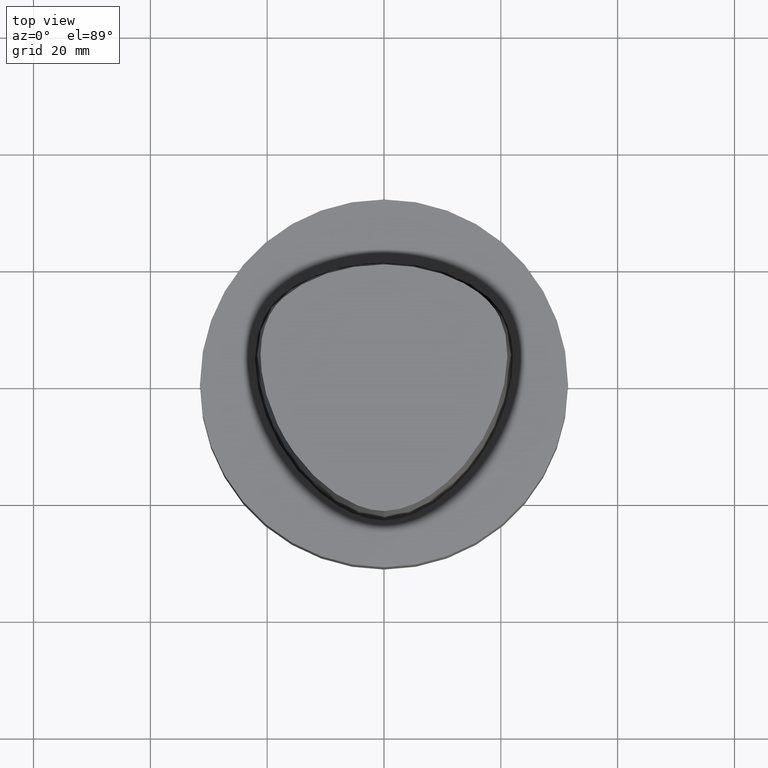
[diagram: clean part render]
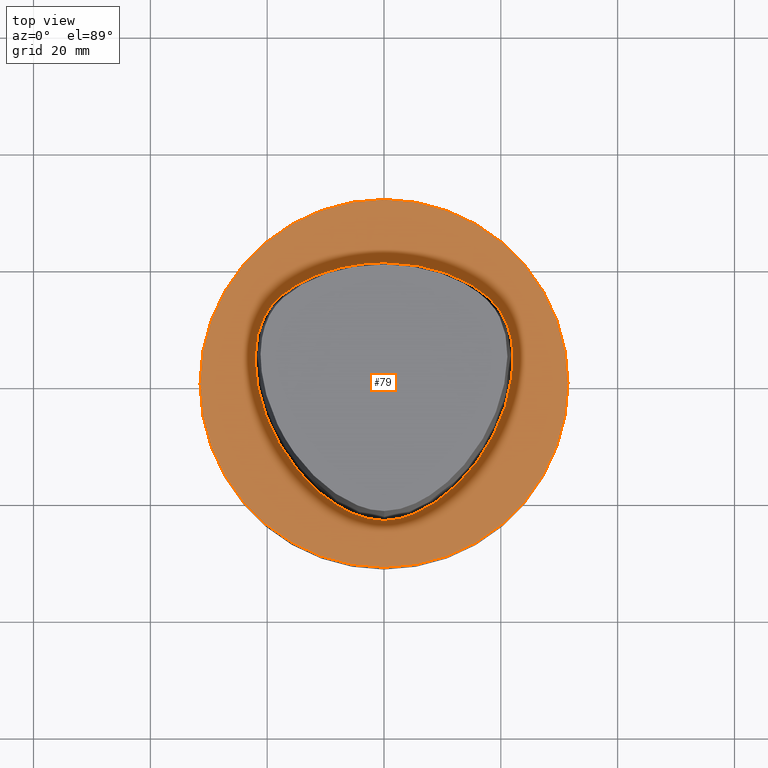
[diagram: same view with one face highlighted and labeled with its STEP entity id]
A machine part, top view. The second image highlights one B-rep face of the part: STEP entity #79.
In plain terms, the highlighted planar face has unit normal (-0, -0, 1).
Its self-contained STEP definition (entity closure, byte-faithful):
#79=ADVANCED_FACE('',(#95,#96),#97,.T.);
#95=FACE_BOUND('',#261,.T.);
#96=FACE_OUTER_BOUND('',#262,.T.);
#97=PLANE('',#263);
#261=EDGE_LOOP('',(#300,#301,#302));
#262=EDGE_LOOP('',(#303));
#263=AXIS2_PLACEMENT_3D('',#304,#305,#306);
#300=ORIENTED_EDGE('',*,*,#336,.T.);
#301=ORIENTED_EDGE('',*,*,#340,.T.);
#302=ORIENTED_EDGE('',*,*,#343,.T.);
#303=ORIENTED_EDGE('',*,*,#344,.F.);
#304=CARTESIAN_POINT('',(-1.94087516075568E-031,15.74625,1.9283594661074E-015));
#305=DIRECTION('',(-6.12323399573677E-017,-1.22464679914735E-016,1.0));
#306=DIRECTION('',(1.23259516440783E-032,-1.0,-1.22464679914735E-016));
#336=EDGE_CURVE('',#350,#351,#352,.T.);
#340=EDGE_CURVE('',#351,#358,#359,.T.);
#343=EDGE_CURVE('',#358,#350,#362,.T.);
#344=EDGE_CURVE('',#363,#363,#364,.T.);
#350=VERTEX_POINT('',#375);
#351=VERTEX_POINT('',#376);
#352=B_SPLINE_CURVE_WITH_KNOTS('',3,(#377,#378,#379,#380,#381,#382,#383,#384,#385,#386,#387,#388,#389,#390,#391,#392,#393),.UNSPECIFIED.,.F.,.F.,(4,1,1,1,1,1,1,1,1,1,1,1,1,1,4),(-13.2302678617486,-12.816821991069,-12.4033761203893,-11.9899302497097,-11.57648437903,-11.1630385083504,-10.9563155730106,-10.7495926376707,-10.3361467669911,-9.92270089631145,-9.09580915495216,-8.26891741359287,-7.44202567223358,-7.02857980155394,-6.6151339308743),.UNSPECIFIED.);
#358=VERTEX_POINT('',#416);
#359=B_SPLINE_CURVE_WITH_KNOTS('',3,(#417,#418,#419,#420,#421,#422,#423,#424,#425,#426,#427,#428,#429,#430,#431,#432,#433,#434),.UNSPECIFIED.,.F.,.F.,(4,1,1,1,1,1,1,1,1,2,1,1,1,1,4),(-6.6151339308743,-6.20168806019465,-5.78824218951501,-5.37479631883537,-4.96135044815572,-4.13445870679644,-3.30756696543715,-2.89412109475751,-2.48067522407786,-2.06722935339822,-1.65378348271857,-1.24033761203893,-0.826891741359287,-0.413445870679644,0.0),.UNSPECIFIED.);
#362=CIRCLE('',#453,0.949936168436318);
#363=VERTEX_POINT('',#454);
#364=CIRCLE('',#455,31.4925);
#375=CARTESIAN_POINT('',(0.044682985379347,20.6765087343109,1.61778115328528E-031));
#376=CARTESIAN_POINT('',(0.04359356758149,-23.4691235068931,7.78075697532443E-032));
#377=CARTESIAN_POINT('',(0.044682985379347,20.6765087343109,1.61778115328528E-031));
#378=CARTESIAN_POINT('',(1.42379272427753,20.6097915814392,8.62816615085482E-032));
#379=CARTESIAN_POINT('',(4.2230955003445,20.4837538303966,1.4791141972894E-031));
#380=CARTESIAN_POINT('',(8.47220762821777,19.6890432607088,9.86076131526265E-032));
#381=CARTESIAN_POINT('',(12.5141247708253,18.2434968480404,0.0));
#382=CARTESIAN_POINT('',(16.3038624872874,16.1734192182143,1.97215226305253E-031));
#383=CARTESIAN_POINT('',(19.1446913988473,13.7036723639434,-1.97215226305253E-031));
#384=CARTESIAN_POINT('',(20.7319894342149,11.1014620996188,0.0));
#385=CARTESIAN_POINT('',(21.7831756505763,8.28099229708081,-1.97215226305253E-031));
#386=CARTESIAN_POINT('',(22.2258240701438,4.60865440596506,0.0));
#387=CARTESIAN_POINT('',(21.7436130080666,-1.11326526354485,0.0));
#388=CARTESIAN_POINT('',(19.5519487660502,-7.95432366164584,0.0));
#389=CARTESIAN_POINT('',(14.9574167123838,-15.2089785567293,0.0));
#390=CARTESIAN_POINT('',(9.66840283021945,-20.0827414369705,-9.86076131526265E-032));
#391=CARTESIAN_POINT('',(4.51628650521788,-22.7946374572188,-9.86076131526265E-032));
#392=CARTESIAN_POINT('',(1.55867251738073,-23.4612972770043,-1.23259516440783E-032));
#393=CARTESIAN_POINT('',(0.04359356758149,-23.4691235068931,7.78075697532443E-032));
#416=CARTESIAN_POINT('',(-0.045171994691285,20.6766009553285,1.6755590516169E-031));
#417=CARTESIAN_POINT('',(0.04359356758149,-23.4691235068931,7.78075697532443E-032));
#418=CARTESIAN_POINT('',(-1.4714994713963,-23.4767895315797,2.46519032881566E-032));
#419=CARTESIAN_POINT('',(-4.43923476371401,-22.821149804767,-4.93038065763132E-032));
#420=CARTESIAN_POINT('',(-8.35043230079961,-20.8000751253325,-9.86076131526265E-032));
#421=CARTESIAN_POINT('',(-11.744900222602,-18.1556117874078,-1.97215226305253E-031));
#422=CARTESIAN_POINT('',(-15.6989602501314,-14.0406306929147,-1.97215226305253E-031));
#423=CARTESIAN_POINT('',(-19.5352875070682,-8.00624990770787,1.97215226305253E-031));
#424=CARTESIAN_POINT('',(-21.7205626190491,-1.16081708945282,0.0));
#425=CARTESIAN_POINT('',(-22.2486616783342,4.54965558738736,0.0));
#426=CARTESIAN_POINT('',(-21.6646421256468,9.00229539124618,0.0));
#427=CARTESIAN_POINT('',(-20.3945635471922,11.7780544971003,0.0));
#428=CARTESIAN_POINT('',(-18.5925528034471,14.1980602922581,0.0));
#429=CARTESIAN_POINT('',(-16.3226584122258,16.1777748720707,0.0));
#430=CARTESIAN_POINT('',(-12.5076407874579,18.2524201541303,9.86076131526265E-032));
#431=CARTESIAN_POINT('',(-8.46776192107786,19.679114377952,9.86076131526265E-032));
#432=CARTESIAN_POINT('',(-4.23043497193604,20.487781597334,1.97215226305253E-031));
#433=CARTESIAN_POINT('',(-1.42313094248379,20.6127745766442,1.10933564796705E-031));
#434=CARTESIAN_POINT('',(-0.045171994691285,20.6766009553285,1.6755590516169E-031));
#453=AXIS2_PLACEMENT_3D('',#469,#470,#471);
#454=CARTESIAN_POINT('',(-3.88175032151136E-031,31.4925,3.8567189322148E-015));
#455=AXIS2_PLACEMENT_3D('',#472,#473,#474);
#469=CARTESIAN_POINT('',(-0.001218547003662,19.7276821925089,1.97178046083078E-015));
#470=DIRECTION('',(6.12323399573677E-017,1.22464679914735E-016,-1.0));
#471=DIRECTION('',(-0.046269895968506,0.998928974816059,1.19500303158668E-016));
#472=CARTESIAN_POINT('',(0.0,0.0,0.0));
#473=DIRECTION('',(6.12323399573677E-017,1.22464679914735E-016,-1.0));
#474=DIRECTION('',(-1.23259516440783E-032,1.0,1.22464679914735E-016));